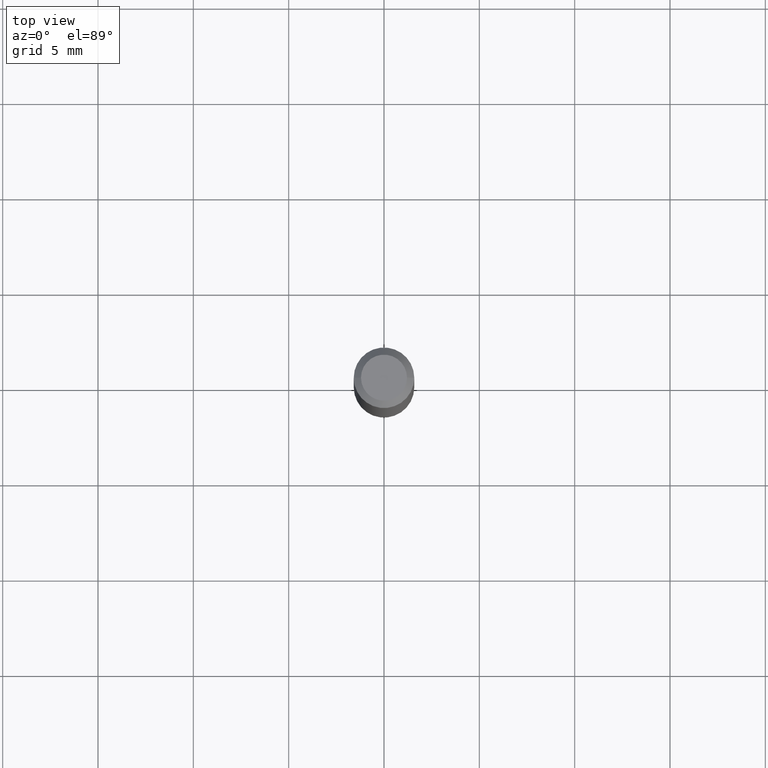
[diagram: clean part render]
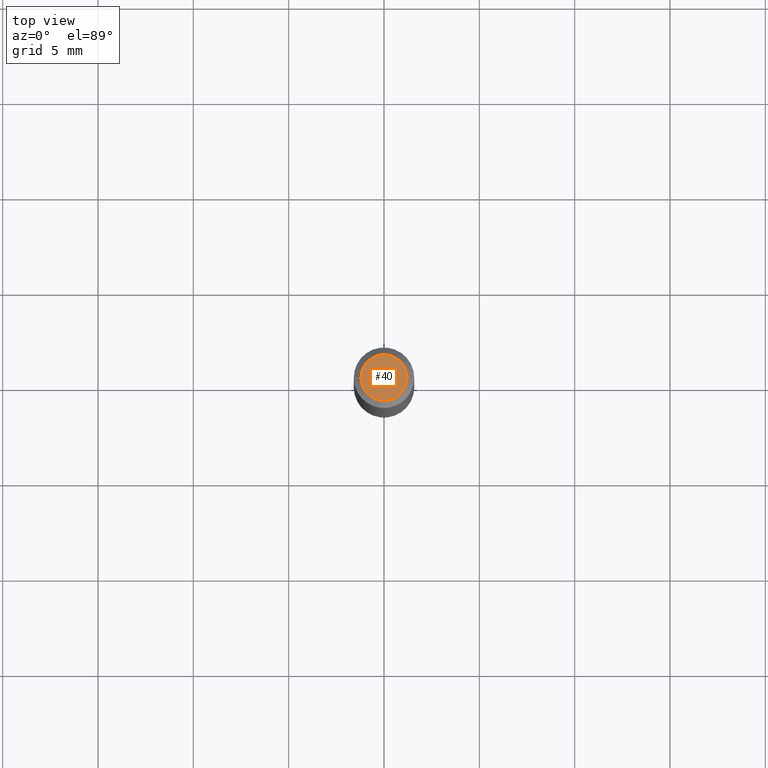
[diagram: same view with one face highlighted and labeled with its STEP entity id]
A machine part, top view. The second image highlights one B-rep face of the part: STEP entity #40.
In plain terms, the highlighted planar face has unit normal (0, -0, -1).
Its self-contained STEP definition (entity closure, byte-faithful):
#29 = EDGE_CURVE ( 'NONE', #155, #178, #462, .T. ) ;
#33 = DIRECTION ( 'NONE',  ( 1.000000000000000000, -6.982962677686267499E-15, 4.884662768193073002E-29 ) ) ;
#37 = DIRECTION ( 'NONE',  ( -1.000000000000000000, 6.982962677686265922E-15, -4.876176775795935793E-29 ) ) ;
#40 = ADVANCED_FACE ( 'NONE', ( #62 ), #246, .F. ) ;
#52 = EDGE_CURVE ( 'NONE', #178, #155, #227, .T. ) ;
#60 = CARTESIAN_POINT ( 'NONE',  ( -2.107530995056288845E-45, 3.008995707351289501E-31, 8.618106228653878303E-17 ) ) ;
#62 = FACE_OUTER_BOUND ( 'NONE', #92, .T. ) ;
#92 = EDGE_LOOP ( 'NONE', ( #360, #237 ) ) ;
#94 = AXIS2_PLACEMENT_3D ( 'NONE', #173, #314, #325 ) ;
#155 = VERTEX_POINT ( 'NONE', #369 ) ;
#173 = CARTESIAN_POINT ( 'NONE',  ( -2.107530995056288845E-45, 3.008995707351289501E-31, 8.618106228653878303E-17 ) ) ;
#178 = VERTEX_POINT ( 'NONE', #438 ) ;
#188 = AXIS2_PLACEMENT_3D ( 'NONE', #207, #390, #37 ) ;
#207 = CARTESIAN_POINT ( 'NONE',  ( 3.316907271900976096E-16, 0.04749999999999999362, -1.227548324517800049E-16 ) ) ;
#227 = CIRCLE ( 'NONE', #94, 0.04749999999999999362 ) ;
#237 = ORIENTED_EDGE ( 'NONE', *, *, #52, .T. ) ;
#246 = PLANE ( 'NONE',  #188 ) ;
#280 = DIRECTION ( 'NONE',  ( -2.445468806185136597E-29, 3.491481338843145583E-15, 1.000000000000000000 ) ) ;
#314 = DIRECTION ( 'NONE',  ( -2.445468806185136597E-29, 3.491481338843145583E-15, 1.000000000000000000 ) ) ;
#325 = DIRECTION ( 'NONE',  ( 1.000000000000000000, -6.982962677686267499E-15, 4.884662768193073002E-29 ) ) ;
#360 = ORIENTED_EDGE ( 'NONE', *, *, #29, .T. ) ;
#369 = CARTESIAN_POINT ( 'NONE',  ( -0.04749999999999999362, 3.578768372314211985E-16, 8.618106228653636715E-17 ) ) ;
#390 = DIRECTION ( 'NONE',  ( 2.438088387897960049E-29, -3.491481338843145188E-15, -1.000000000000000000 ) ) ;
#438 = CARTESIAN_POINT ( 'NONE',  ( 0.04749999999999999362, -4.035134999187576651E-16, 8.618106228654135916E-17 ) ) ;
#439 = AXIS2_PLACEMENT_3D ( 'NONE', #60, #280, #33 ) ;
#462 = CIRCLE ( 'NONE', #439, 0.04749999999999999362 ) ;